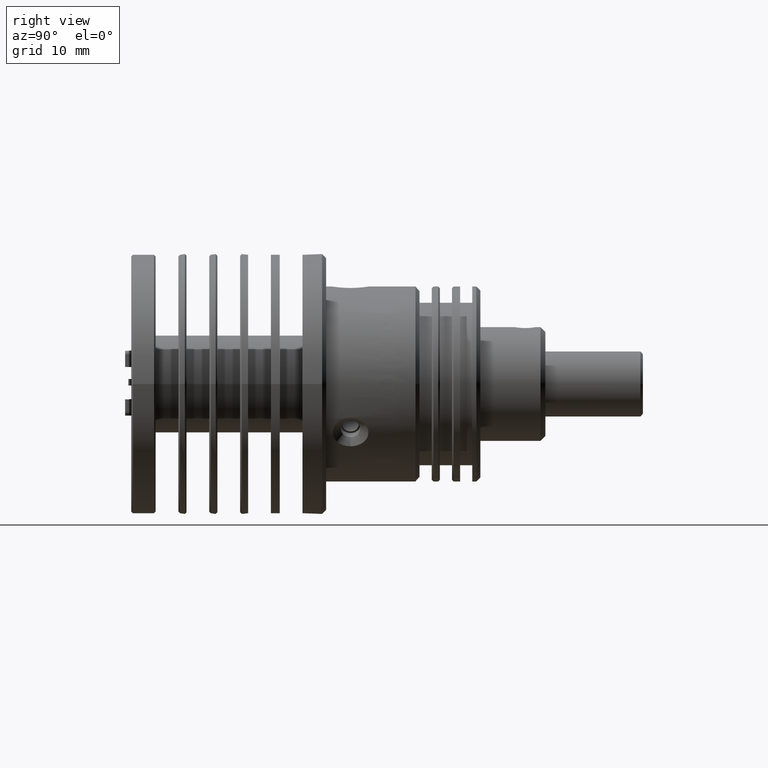
[diagram: clean part render]
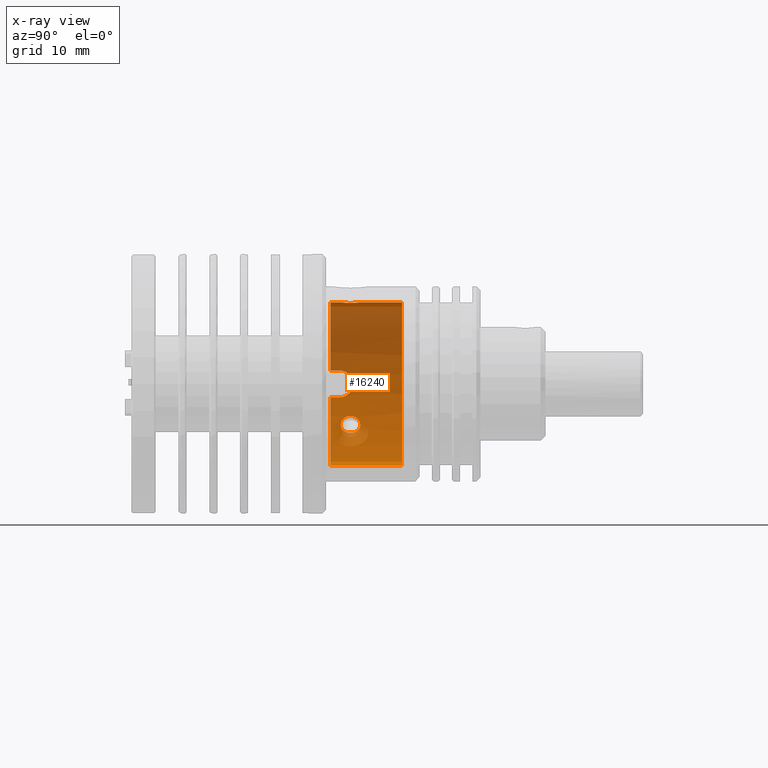
[diagram: x-ray — body ghosted, one internal face saturated and labeled with its STEP entity id]
A machine part, right view, then the same camera in x-ray: the body is ghosted and one INTERNAL B-rep face — a face not visible from any outside direction — is saturated and labeled: STEP entity #16240.
In plain terms, the highlighted cylindrical surface (partial cylindrical patch) has radius 10.05 mm, axis along (-0, -1, -0).
Its self-contained STEP definition (entity closure, byte-faithful):
#63 = LINE ( 'NONE', #12084, #15888 ) ;
#283 = CARTESIAN_POINT ( 'NONE',  ( -7.365196301838533800, -13.33273605639488000, -7.691446740433031300 ) ) ;
#351 = CARTESIAN_POINT ( 'NONE',  ( -7.425150924389004800, -12.74396950269295900, -10.18634173709258000 ) ) ;
#456 = EDGE_CURVE ( 'NONE', #18194, #6506, #2271, .T. ) ;
#489 = CARTESIAN_POINT ( 'NONE',  ( 2.574933787635819800, -13.91493551001259900, 0.8759640783406168500 ) ) ;
#695 = CARTESIAN_POINT ( 'NONE',  ( 2.416318049454509300, -13.91493551001259900, 0.8759640783406169600 ) ) ;
#738 = CARTESIAN_POINT ( 'NONE',  ( -6.666355178716347800, -12.55624557464355800, -13.12385594798687900 ) ) ;
#739 = DIRECTION ( 'NONE',  ( -0.0000000000000000000, -1.000000000000000000, -0.0000000000000000000 ) ) ;
#806 = CARTESIAN_POINT ( 'NONE',  ( -5.811882643999053900, -11.66607838531415300, -14.71343885816804000 ) ) ;
#821 = CARTESIAN_POINT ( 'NONE',  ( 2.574933787635818900, -15.21493551001261000, -19.22403592165938900 ) ) ;
#1127 = EDGE_CURVE ( 'NONE', #16426, #4063, #10993, .T. ) ;
#1724 = DIRECTION ( 'NONE',  ( -0.0000000000000000000, -1.000000000000000000, -0.0000000000000000000 ) ) ;
#1788 = EDGE_CURVE ( 'NONE', #6036, #4887, #11895, .T. ) ;
#1818 = CARTESIAN_POINT ( 'NONE',  ( -7.389214611088064500, -13.05884726845567400, -7.861825288794522100 ) ) ;
#1883 = CARTESIAN_POINT ( 'NONE',  ( -7.389365098990664300, -13.05739233161789900, -10.48509927012492900 ) ) ;
#1983 = CARTESIAN_POINT ( 'NONE',  ( 2.260683748645345500, -11.54619280607507100, 0.8721016758425723700 ) ) ;
#2007 = DIRECTION ( 'NONE',  ( -0.0000000000000000000, -1.000000000000000000, -0.0000000000000000000 ) ) ;
#2141 = CARTESIAN_POINT ( 'NONE',  ( 2.574933787635818900, -15.21493551001261000, -9.174035921659385200 ) ) ;
#2164 = VECTOR ( 'NONE', #2007, 1000.000000000000000 ) ;
#2271 = LINE ( 'NONE', #10955, #14031 ) ;
#2318 = AXIS2_PLACEMENT_3D ( 'NONE', #2141, #12898, #3692 ) ;
#2327 = CARTESIAN_POINT ( 'NONE',  ( -5.609363255047017400, -11.97774425496778700, -15.00776754230111700 ) ) ;
#2365 = CARTESIAN_POINT ( 'NONE',  ( -6.281872470877417000, -13.88399231775494500, -13.92594686885759400 ) ) ;
#2606 = CARTESIAN_POINT ( 'NONE',  ( 2.574933787635818900, -6.364935510012617900, -19.22403592165938900 ) ) ;
#2658 = ORIENTED_EDGE ( 'NONE', *, *, #1788, .T. ) ;
#2710 = CARTESIAN_POINT ( 'NONE',  ( -6.049848818757931600, -13.91482184658483100, -14.33544709965094400 ) ) ;
#2989 = ORIENTED_EDGE ( 'NONE', *, *, #19526, .F. ) ;
#3079 = CYLINDRICAL_SURFACE ( 'NONE', #15382, 10.05000000000000400 ) ;
#3258 = ORIENTED_EDGE ( 'NONE', *, *, #3657, .F. ) ;
#3373 = CARTESIAN_POINT ( 'NONE',  ( -7.424870113386497800, -12.74628547507355200, -8.159238505694842700 ) ) ;
#3443 = CARTESIAN_POINT ( 'NONE',  ( -7.365227484519424600, -13.33232449772937000, -10.65641609366932800 ) ) ;
#3536 = CARTESIAN_POINT ( 'NONE',  ( 1.837260044285978100, -11.75562682605704600, 0.8494690128560509200 ) ) ;
#3549 = ORIENTED_EDGE ( 'NONE', *, *, #3792, .T. ) ;
#3657 = EDGE_CURVE ( 'NONE', #18194, #4207, #9779, .T. ) ;
#3692 = DIRECTION ( 'NONE',  ( 0.0000000000000000000, 0.0000000000000000000, -1.000000000000000000 ) ) ;
#3698 = CARTESIAN_POINT ( 'NONE',  ( 1.374933787635822300, -12.71493551001260200, 0.8040651000781711100 ) ) ;
#3725 = ORIENTED_EDGE ( 'NONE', *, *, #456, .T. ) ;
#3792 = EDGE_CURVE ( 'NONE', #4197, #16891, #6328, .T. ) ;
#3802 = CARTESIAN_POINT ( 'NONE',  ( -6.654086334014651000, -12.40053944760966000, -13.15290027558209100 ) ) ;
#3875 = CARTESIAN_POINT ( 'NONE',  ( -5.485437508883137500, -12.40015281160326800, -15.17708462709722800 ) ) ;
#3984 = VECTOR ( 'NONE', #9542, 1000.000000000000000 ) ;
#4063 = VERTEX_POINT ( 'NONE', #5438 ) ;
#4197 = VERTEX_POINT ( 'NONE', #13469 ) ;
#4207 = VERTEX_POINT ( 'NONE', #2606 ) ;
#4539 = ORIENTED_EDGE ( 'NONE', *, *, #12174, .T. ) ;
#4565 = VERTEX_POINT ( 'NONE', #489 ) ;
#4847 = EDGE_CURVE ( 'NONE', #4207, #17683, #63, .T. ) ;
#4887 = VERTEX_POINT ( 'NONE', #12692 ) ;
#4917 = CARTESIAN_POINT ( 'NONE',  ( -7.467650233290799000, -12.45865961743912600, -8.739831268502014100 ) ) ;
#4994 = CARTESIAN_POINT ( 'NONE',  ( -7.338693197479167400, -13.84655211439876200, -10.82403592165938700 ) ) ;
#5010 = FACE_BOUND ( 'NONE', #6065, .T. ) ;
#5094 = CARTESIAN_POINT ( 'NONE',  ( 1.526715360699865600, -12.11025825549473500, 0.8213317106148657600 ) ) ;
#5369 = CARTESIAN_POINT ( 'NONE',  ( -6.568978985980402600, -11.97697143207793700, -13.34580724105953700 ) ) ;
#5438 = CARTESIAN_POINT ( 'NONE',  ( -7.338693197479165600, -15.21493551001260700, -7.524035921659381300 ) ) ;
#5442 = CARTESIAN_POINT ( 'NONE',  ( -5.466355178716337800, -12.71493551001260200, -15.20231691706952600 ) ) ;
#5449 = ORIENTED_EDGE ( 'NONE', *, *, #15141, .T. ) ;
#5482 = CARTESIAN_POINT ( 'NONE',  ( 1.374933787635822300, -12.71493551001260200, 0.8040651000781711100 ) ) ;
#5534 = EDGE_CURVE ( 'NONE', #17548, #4565, #12353, .T. ) ;
#5781 = EDGE_CURVE ( 'NONE', #4565, #16426, #6256, .T. ) ;
#5880 = CARTESIAN_POINT ( 'NONE',  ( -7.338693197479165600, -15.21493551001260700, -10.82403592165938900 ) ) ;
#6019 = DIRECTION ( 'NONE',  ( -0.0000000000000000000, -1.000000000000000000, -0.0000000000000000000 ) ) ;
#6036 = VERTEX_POINT ( 'NONE', #15051 ) ;
#6065 = EDGE_LOOP ( 'NONE', ( #5449, #2658 ) ) ;
#6198 = CARTESIAN_POINT ( 'NONE',  ( -6.569374516041861500, -13.45212676505741500, -13.34497926241979500 ) ) ;
#6256 = LINE ( 'NONE', #8124, #2164 ) ;
#6328 = B_SPLINE_CURVE_WITH_KNOTS ( 'NONE', 3,
 ( #7942, #6413, #15574, #18673, #9504, #283, #11041, #1818, #12581, #3373, #14105, #4917, #15645, #6474, #17185, #8011, #18744, #9567, #351, #11106, #1883, #12649, #3443, #14178, #4994, #15712 ),
 .UNSPECIFIED., .F., .F.,
 ( 4, 2, 2, 2, 2, 2, 2, 2, 2, 2, 2, 2, 4 ),
 ( 0.0000000000000000000, 0.0003228820284595866100, 0.0006457640569191732100, 0.0009686460853787598200, 0.001291528113838346400, 0.001937292170757515900, 0.002583056227676685500, 0.002905938256136267400, 0.003228820284595849400, 0.003874584341515014100, 0.004197466369974595600, 0.004520348398434177600, 0.005166112455353339700 ),
 .UNSPECIFIED. ) ;
#6413 = CARTESIAN_POINT ( 'NONE',  ( -7.338693197479169200, -13.95574385449566700, -7.524035921659384800 ) ) ;
#6474 = CARTESIAN_POINT ( 'NONE',  ( -7.475079701769062400, -12.41485334725023300, -9.280565353595015700 ) ) ;
#6506 = VERTEX_POINT ( 'NONE', #8108 ) ;
#6641 = CARTESIAN_POINT ( 'NONE',  ( 1.374933787635823000, -12.55631965701777200, 0.8040651000781711100 ) ) ;
#6804 = CARTESIAN_POINT ( 'NONE',  ( 1.526573199099196400, -13.31962733467051900, 0.8213183820951343000 ) ) ;
#6906 = CARTESIAN_POINT ( 'NONE',  ( -6.415873048750138500, -11.66642266347083300, -13.66722738292203600 ) ) ;
#6907 = DIRECTION ( 'NONE',  ( 0.0000000000000000000, 0.0000000000000000000, -1.000000000000000000 ) ) ;
#7154 = CARTESIAN_POINT ( 'NONE',  ( -5.466355178716337800, -12.71493551001260200, -15.20231691706952600 ) ) ;
#7434 = ORIENTED_EDGE ( 'NONE', *, *, #4847, .F. ) ;
#7942 = CARTESIAN_POINT ( 'NONE',  ( -7.338693197479165600, -14.06493551001259600, -7.524035921659380400 ) ) ;
#8011 = CARTESIAN_POINT ( 'NONE',  ( -7.466516011806267400, -12.46770474733876500, -9.601828051349853500 ) ) ;
#8108 = CARTESIAN_POINT ( 'NONE',  ( 2.574933787635819800, -11.51493551001260600, 0.8759640783406168500 ) ) ;
#8124 = CARTESIAN_POINT ( 'NONE',  ( 2.574933787635819800, -38.96480397725189000, 0.8759640783406168500 ) ) ;
#8130 = CARTESIAN_POINT ( 'NONE',  ( -5.557196582325330400, -13.31987878702463300, -15.07951046641033900 ) ) ;
#8336 = CARTESIAN_POINT ( 'NONE',  ( 1.836615958051839700, -13.67374851745861600, 0.8494207700840440400 ) ) ;
#8448 = CARTESIAN_POINT ( 'NONE',  ( -6.207370715078661200, -11.51504917344037600, -14.06261117191884200 ) ) ;
#8638 = FACE_OUTER_BOUND ( 'NONE', #12781, .T. ) ;
#8772 = ORIENTED_EDGE ( 'NONE', *, *, #5781, .T. ) ;
#8946 = ORIENTED_EDGE ( 'NONE', *, *, #5534, .T. ) ;
#8953 = CARTESIAN_POINT ( 'NONE',  ( -6.473767911919308600, -13.67591120761814400, -13.54852334957712000 ) ) ;
#9200 = ORIENTED_EDGE ( 'NONE', *, *, #16142, .T. ) ;
#9233 = CARTESIAN_POINT ( 'NONE',  ( -6.206525877578719100, -13.91504854518255900, -14.06412861035747500 ) ) ;
#9252 = DIRECTION ( 'NONE',  ( 0.0000000000000000000, 0.0000000000000000000, -1.000000000000000000 ) ) ;
#9330 = CARTESIAN_POINT ( 'NONE',  ( 2.574933787635819800, -11.51493551001260600, 0.8759640783406168500 ) ) ;
#9340 = DIRECTION ( 'NONE',  ( 0.0000000000000000000, -1.000000000000000000, 0.0000000000000000000 ) ) ;
#9499 = CARTESIAN_POINT ( 'NONE',  ( -6.666355178716348600, -12.87362574196554200, -13.12385594798688100 ) ) ;
#9504 = CARTESIAN_POINT ( 'NONE',  ( -7.352483975841132700, -13.53243828485321900, -7.608586010175440800 ) ) ;
#9542 = DIRECTION ( 'NONE',  ( 0.0000000000000000000, 1.000000000000000000, 0.0000000000000000000 ) ) ;
#9567 = CARTESIAN_POINT ( 'NONE',  ( -7.442679612202145000, -12.62297017581122400, -10.00474284703834500 ) ) ;
#9669 = CARTESIAN_POINT ( 'NONE',  ( 2.416316450176763600, -11.51493551001260900, 0.8759640783406166300 ) ) ;
#9694 = CARTESIAN_POINT ( 'NONE',  ( 1.374933787635822100, -12.87355300896329500, 0.8040651000781708900 ) ) ;
#9741 = CARTESIAN_POINT ( 'NONE',  ( 2.574933787635818900, -15.21493551001261000, -9.174035921659385200 ) ) ;
#9779 = CIRCLE ( 'NONE', #15478, 10.05000000000000400 ) ;
#9901 = CARTESIAN_POINT ( 'NONE',  ( 2.258732613477388200, -13.88301671989337800, 0.8720262727735161900 ) ) ;
#9939 = CARTESIAN_POINT ( 'NONE',  ( 2.574933787635818900, -38.96480397725189000, -9.174035921659385200 ) ) ;
#10003 = LINE ( 'NONE', #12343, #18141 ) ;
#10004 = CARTESIAN_POINT ( 'NONE',  ( -5.968744938415772700, -11.54587870227026200, -14.46829966432983000 ) ) ;
#10955 = CARTESIAN_POINT ( 'NONE',  ( 2.574933787635819800, -38.96480397725189000, 0.8759640783406168500 ) ) ;
#10993 = CIRCLE ( 'NONE', #16055, 10.05000000000000400 ) ;
#11041 = CARTESIAN_POINT ( 'NONE',  ( -7.372718291776806200, -13.23804849774932400, -7.742125252744237700 ) ) ;
#11075 = CARTESIAN_POINT ( 'NONE',  ( -7.338693197479165600, -38.96480397725189000, -10.82403592165939100 ) ) ;
#11090 = DIRECTION ( 'NONE',  ( -0.0000000000000000000, -1.000000000000000000, -0.0000000000000000000 ) ) ;
#11106 = CARTESIAN_POINT ( 'NONE',  ( -7.398213353866208500, -12.97430351788353200, -10.41694598351344500 ) ) ;
#11433 = CARTESIAN_POINT ( 'NONE',  ( -7.338693197479165600, -14.06493551001259600, -10.82403592165938700 ) ) ;
#11438 = CARTESIAN_POINT ( 'NONE',  ( 2.574933787635819800, -13.91493551001259900, 0.8759640783406168500 ) ) ;
#11478 = CARTESIAN_POINT ( 'NONE',  ( -6.666355178716347800, -12.71493551001259800, -13.12385594798688100 ) ) ;
#11543 = CARTESIAN_POINT ( 'NONE',  ( -5.737834303254101300, -11.75395981240705900, -14.82319775078275900 ) ) ;
#11673 = LINE ( 'NONE', #11075, #3984 ) ;
#11895 = B_SPLINE_CURVE_WITH_KNOTS ( 'NONE', 3,
 ( #7154, #19818, #19565, #8130, #15297, #18057, #18943, #13821, #2710, #9233, #2365, #18180, #8953, #6198, #13975, #18801, #9499, #13852 ),
 .UNSPECIFIED., .F., .F.,
 ( 4, 2, 2, 2, 2, 2, 2, 2, 4 ),
 ( 0.003754237827597694000, 0.004223518433108780500, 0.004692799038619866100, 0.005162079644130951700, 0.005631360249642038100, 0.006100640855153124600, 0.006569921460664210200, 0.007039202066175295800, 0.007508482671686382200 ),
 .UNSPECIFIED. ) ;
#12084 = CARTESIAN_POINT ( 'NONE',  ( 2.574933787635818900, -38.96480397725189000, -19.22403592165938900 ) ) ;
#12174 = EDGE_CURVE ( 'NONE', #16414, #17683, #15047, .T. ) ;
#12343 = CARTESIAN_POINT ( 'NONE',  ( -7.338693197479163800, -38.96480397725189000, -7.524035921659376000 ) ) ;
#12353 = B_SPLINE_CURVE_WITH_KNOTS ( 'NONE', 3,
 ( #3698, #9694, #15975, #6804, #17504, #8336, #19071, #9901, #695, #11438 ),
 .UNSPECIFIED., .F., .F.,
 ( 4, 2, 2, 2, 4 ),
 ( 3.469446951953614200E-018, 0.0004690655186282194300, 0.0009381310372564353800, 0.001407196555884651300, 0.001876262074512867300 ),
 .UNSPECIFIED. ) ;
#12581 = CARTESIAN_POINT ( 'NONE',  ( -7.398237154016385400, -12.97414286456995600, -7.931373726140625600 ) ) ;
#12649 = CARTESIAN_POINT ( 'NONE',  ( -7.372907676438079400, -13.23581504310088200, -10.60462657288267400 ) ) ;
#12692 = CARTESIAN_POINT ( 'NONE',  ( -6.666355178716347800, -12.71493551001259800, -13.12385594798688100 ) ) ;
#12739 = CARTESIAN_POINT ( 'NONE',  ( 1.970238976856668800, -11.66657642037322900, 0.8588090338238142400 ) ) ;
#12781 = EDGE_LOOP ( 'NONE', ( #3258, #3725, #9200, #8946, #8772, #14774, #15158, #3549, #2989, #4539, #7434 ) ) ;
#12898 = DIRECTION ( 'NONE',  ( 0.0000000000000000000, -1.000000000000000000, 0.0000000000000000000 ) ) ;
#13074 = CARTESIAN_POINT ( 'NONE',  ( -5.557310004346492200, -12.10966296454391000, -15.07935471960508200 ) ) ;
#13469 = CARTESIAN_POINT ( 'NONE',  ( -7.338693197479165600, -14.06493551001259600, -7.524035921659380400 ) ) ;
#13821 = CARTESIAN_POINT ( 'NONE',  ( -5.967476270804382900, -13.88321315329882900, -14.47031834145420800 ) ) ;
#13852 = CARTESIAN_POINT ( 'NONE',  ( -6.666355178716347800, -12.71493551001259800, -13.12385594798688100 ) ) ;
#13975 = CARTESIAN_POINT ( 'NONE',  ( -6.605344204822058500, -13.32020805548128800, -13.26410623631160000 ) ) ;
#14031 = VECTOR ( 'NONE', #11090, 1000.000000000000000 ) ;
#14089 = B_SPLINE_CURVE_WITH_KNOTS ( 'NONE', 3,
 ( #9330, #9669, #1983, #12739, #3536, #14278, #5094, #15805, #6641, #17345 ),
 .UNSPECIFIED., .F., .F.,
 ( 4, 2, 2, 2, 4 ),
 ( -0.001876242604753247200, -0.001407181953564934400, -0.0009381213023766218800, -0.0004690606511883093100, 3.469446951953614200E-018 ),
 .UNSPECIFIED. ) ;
#14105 = CARTESIAN_POINT ( 'NONE',  ( -7.442620261398961800, -12.62340245419140300, -8.342989368895324300 ) ) ;
#14178 = CARTESIAN_POINT ( 'NONE',  ( -7.346160411477386600, -13.63162127861400900, -10.78071518511396600 ) ) ;
#14278 = CARTESIAN_POINT ( 'NONE',  ( 1.616117523512674600, -11.97662184063268000, 0.8307371939857670600 ) ) ;
#14365 = B_SPLINE_CURVE_WITH_KNOTS ( 'NONE', 3,
 ( #11478, #738, #3802, #14552, #5369, #16074, #6906, #17619, #8448, #19176, #10004, #806, #11543, #2327, #13074, #3875, #14613, #5442 ),
 .UNSPECIFIED., .F., .F.,
 ( 4, 2, 2, 2, 2, 2, 2, 2, 4 ),
 ( 0.0000000000000000000, 0.0004692797284497117600, 0.0009385594568994235100, 0.001407839185349135300, 0.001877118913798847000, 0.002346398642248558600, 0.002815678370698270500, 0.003284958099147982500, 0.003754237827597694000 ),
 .UNSPECIFIED. ) ;
#14552 = CARTESIAN_POINT ( 'NONE',  ( -6.605422374501385400, -12.10999223300056800, -13.26393013655729900 ) ) ;
#14613 = CARTESIAN_POINT ( 'NONE',  ( -5.466355178716338700, -12.55624587122690800, -15.20231691706952600 ) ) ;
#14774 = ORIENTED_EDGE ( 'NONE', *, *, #1127, .T. ) ;
#15047 = CIRCLE ( 'NONE', #2318, 10.05000000000000400 ) ;
#15051 = CARTESIAN_POINT ( 'NONE',  ( -5.466355178716337800, -12.71493551001260200, -15.20231691706952600 ) ) ;
#15141 = EDGE_CURVE ( 'NONE', #4887, #6036, #14365, .T. ) ;
#15158 = ORIENTED_EDGE ( 'NONE', *, *, #19419, .F. ) ;
#15194 = CARTESIAN_POINT ( 'NONE',  ( 2.574933787635818900, -6.364935510012617900, -9.174035921659385200 ) ) ;
#15297 = CARTESIAN_POINT ( 'NONE',  ( -5.609882540552092700, -13.45289958794726500, -15.00701101390006400 ) ) ;
#15382 = AXIS2_PLACEMENT_3D ( 'NONE', #9939, #739, #6907 ) ;
#15478 = AXIS2_PLACEMENT_3D ( 'NONE', #15194, #6019, #16712 ) ;
#15574 = CARTESIAN_POINT ( 'NONE',  ( -7.340496232750094700, -13.84841425600036600, -7.534767627290008800 ) ) ;
#15645 = CARTESIAN_POINT ( 'NONE',  ( -7.475038994684490800, -12.41510129047262000, -8.957181816383242200 ) ) ;
#15712 = CARTESIAN_POINT ( 'NONE',  ( -7.338693197479165600, -14.06493551001259600, -10.82403592165938700 ) ) ;
#15805 = CARTESIAN_POINT ( 'NONE',  ( 1.406852632066896400, -12.39873483527562600, 0.8080341236212339500 ) ) ;
#15888 = VECTOR ( 'NONE', #18577, 1000.000000000000000 ) ;
#15975 = CARTESIAN_POINT ( 'NONE',  ( 1.406191172012213100, -13.02918513185847100, 0.8079582818856230200 ) ) ;
#16021 = CARTESIAN_POINT ( 'NONE',  ( 2.574933787635819800, -6.364935510012617900, 0.8759640783406168500 ) ) ;
#16055 = AXIS2_PLACEMENT_3D ( 'NONE', #9741, #9340, #9252 ) ;
#16074 = CARTESIAN_POINT ( 'NONE',  ( -6.474623706379373000, -11.75581071104839200, -13.54671541087249800 ) ) ;
#16142 = EDGE_CURVE ( 'NONE', #6506, #17548, #14089, .T. ) ;
#16240 = ADVANCED_FACE ( 'NONE', ( #5010, #8638 ), #3079, .F. ) ;
#16414 = VERTEX_POINT ( 'NONE', #5880 ) ;
#16426 = VERTEX_POINT ( 'NONE', #18131 ) ;
#16712 = DIRECTION ( 'NONE',  ( 0.0000000000000000000, 0.0000000000000000000, -1.000000000000000000 ) ) ;
#16891 = VERTEX_POINT ( 'NONE', #11433 ) ;
#17185 = CARTESIAN_POINT ( 'NONE',  ( -7.473302003880093900, -12.42558363917539000, -9.390086052507031800 ) ) ;
#17345 = CARTESIAN_POINT ( 'NONE',  ( 1.374933787635822300, -12.71493551001260200, 0.8040651000781711100 ) ) ;
#17504 = CARTESIAN_POINT ( 'NONE',  ( 1.615622311087150600, -13.45260555257315000, 0.8306889001285554500 ) ) ;
#17548 = VERTEX_POINT ( 'NONE', #5482 ) ;
#17619 = CARTESIAN_POINT ( 'NONE',  ( -6.282986362743471900, -11.54665786672637800, -13.92383883191498500 ) ) ;
#17683 = VERTEX_POINT ( 'NONE', #821 ) ;
#18057 = CARTESIAN_POINT ( 'NONE',  ( -5.736696479637443800, -13.67406030897681300, -14.82484285987790400 ) ) ;
#18131 = CARTESIAN_POINT ( 'NONE',  ( 2.574933787635819800, -15.21493551001261000, 0.8759640783406186200 ) ) ;
#18141 = VECTOR ( 'NONE', #1724, 1000.000000000000000 ) ;
#18180 = CARTESIAN_POINT ( 'NONE',  ( -6.415738092996187800, -13.76379263471105200, -13.66753054007769600 ) ) ;
#18194 = VERTEX_POINT ( 'NONE', #16021 ) ;
#18577 = DIRECTION ( 'NONE',  ( -0.0000000000000000000, -1.000000000000000000, -0.0000000000000000000 ) ) ;
#18673 = CARTESIAN_POINT ( 'NONE',  ( -7.347350738913798200, -13.63731512921351400, -7.576781150406857200 ) ) ;
#18744 = CARTESIAN_POINT ( 'NONE',  ( -7.461542917471012600, -12.49887800747371700, -9.704765046514477700 ) ) ;
#18801 = CARTESIAN_POINT ( 'NONE',  ( -6.654044539688083400, -13.02971820842193700, -13.15299787566088200 ) ) ;
#18943 = CARTESIAN_POINT ( 'NONE',  ( -5.811687580077884400, -13.76344835655437000, -14.71370731185718000 ) ) ;
#19071 = CARTESIAN_POINT ( 'NONE',  ( 1.970253601796777300, -13.76315245715159100, 0.8587957160093557800 ) ) ;
#19176 = CARTESIAN_POINT ( 'NONE',  ( -6.050740540244494700, -11.51482247484264600, -14.33395672969460600 ) ) ;
#19419 = EDGE_CURVE ( 'NONE', #4197, #4063, #10003, .T. ) ;
#19526 = EDGE_CURVE ( 'NONE', #16414, #16891, #11673, .T. ) ;
#19565 = CARTESIAN_POINT ( 'NONE',  ( -5.485373881898776300, -13.02933157241554700, -15.17716962208517200 ) ) ;
#19818 = CARTESIAN_POINT ( 'NONE',  ( -5.466355178716337800, -12.87362544538163400, -15.20231691706952400 ) ) ;